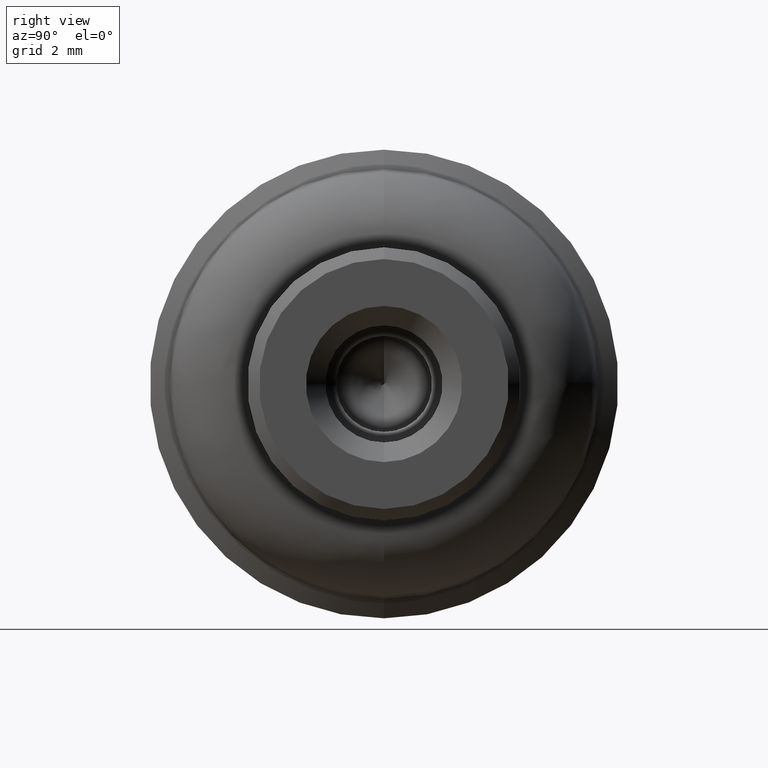
[diagram: clean part render]
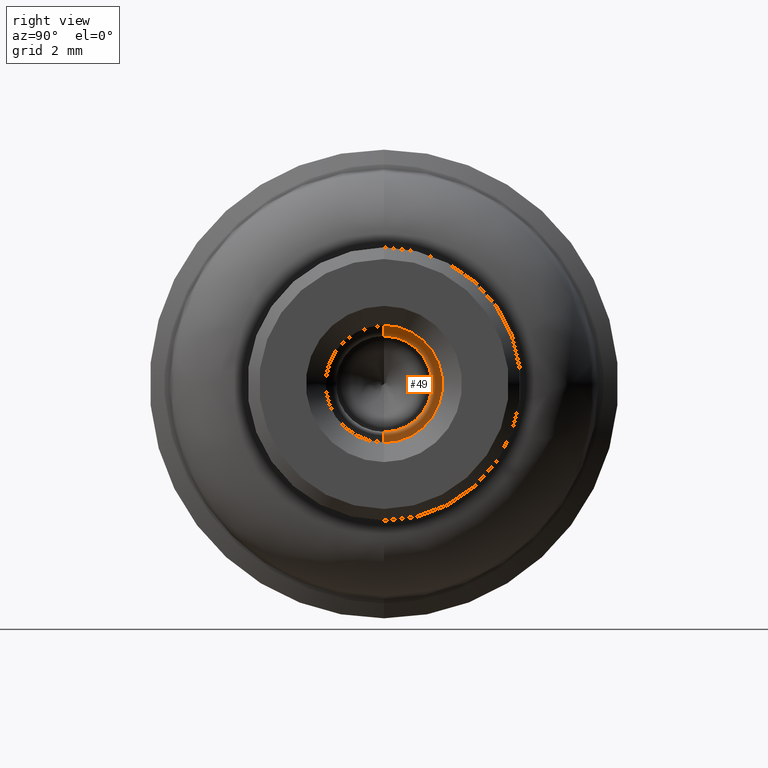
[diagram: same view with one face highlighted and labeled with its STEP entity id]
A machine part, right view. The second image highlights one B-rep face of the part: STEP entity #49.
In plain terms, the highlighted face is a freeform B-spline surface patch.
Its self-contained STEP definition (entity closure, byte-faithful):
#49=ADVANCED_FACE('',(#164),#163,.F.);
#163=( BOUNDED_SURFACE() B_SPLINE_SURFACE( 2,1,((#439,#440),(#441,#442),(#443,#444),(#445,#446),(#447,#448)), .UNSPECIFIED.,.F.,.F.,.F.) B_SPLINE_SURFACE_WITH_KNOTS((3,2,3),(2,2),(0.00000000000E+00,5.00000000000E-01,1.00000000000E+00),(0.00000000000E+00,1.00000000000E+00), .UNSPECIFIED. ) GEOMETRIC_REPRESENTATION_ITEM() RATIONAL_B_SPLINE_SURFACE(((1.00000000000E+00,1.00000000000E+00),(7.07106781187E-01,7.07106781187E-01),(1.00000000000E+00,1.00000000000E+00),(7.07106781187E-01,7.07106781187E-01),(1.00000000000E+00,1.00000000000E+00))) REPRESENTATION_ITEM('') SURFACE() );
#164=FACE_OUTER_BOUND('',#449,.T.);
#439=CARTESIAN_POINT('',(-5.50000000000E+00,0.00000000000E+00,0.00000000000E+00));
#440=CARTESIAN_POINT('',(-3.37867965644E+00,2.59786816871E-16,-2.12132034356E+00));
#441=CARTESIAN_POINT('',(-5.50000000000E+00,0.00000000000E+00,0.00000000000E+00));
#442=CARTESIAN_POINT('',(-3.37867965644E+00,2.12132034356E+00,-2.12132034356E+00));
#443=CARTESIAN_POINT('',(-5.50000000000E+00,0.00000000000E+00,0.00000000000E+00));
#444=CARTESIAN_POINT('',(-3.37867965644E+00,2.12132034356E+00,1.29893408435E-16));
#445=CARTESIAN_POINT('',(-5.50000000000E+00,0.00000000000E+00,0.00000000000E+00));
#446=CARTESIAN_POINT('',(-3.37867965644E+00,2.12132034356E+00,2.12132034356E+00));
#447=CARTESIAN_POINT('',(-5.50000000000E+00,0.00000000000E+00,0.00000000000E+00));
#448=CARTESIAN_POINT('',(-3.37867965644E+00,0.00000000000E+00,2.12132034356E+00));
#449=EDGE_LOOP('',(#714,#715,#716,#717));
#714=ORIENTED_EDGE('',*,*,#823,.F.);
#715=ORIENTED_EDGE('',*,*,#820,.F.);
#716=ORIENTED_EDGE('',*,*,#817,.T.);
#717=ORIENTED_EDGE('',*,*,#822,.T.);
#817=EDGE_CURVE('',#988,#981,#989,.T.);
#820=EDGE_CURVE('',#988,#1007,#1008,.T.);
#822=EDGE_CURVE('',#981,#1014,#1021,.T.);
#823=EDGE_CURVE('',#1007,#1014,#1027,.T.);
#981=VERTEX_POINT('',#1322);
#988=VERTEX_POINT('',#1325);
#989=CIRCLE('',#1329,1.22950000000E+00);
#1007=VERTEX_POINT('',#1336);
#1008=(BOUNDED_CURVE() B_SPLINE_CURVE(1,(#1337,#1338),.UNSPECIFIED.,.F.,.F.) B_SPLINE_CURVE_WITH_KNOTS((2,2),(5.79591860373E-01,7.07106779065E-01),.UNSPECIFIED.) CURVE() GEOMETRIC_REPRESENTATION_ITEM() RATIONAL_B_SPLINE_CURVE((1.00000000000E+00,1.00000000000E+00)) REPRESENTATION_ITEM('') );
#1014=VERTEX_POINT('',#1339);
#1021=(BOUNDED_CURVE() B_SPLINE_CURVE(1,(#1344,#1345),.UNSPECIFIED.,.F.,.F.) B_SPLINE_CURVE_WITH_KNOTS((2,2),(5.79590688547E-01,7.07106781187E-01),.UNSPECIFIED.) CURVE() GEOMETRIC_REPRESENTATION_ITEM() RATIONAL_B_SPLINE_CURVE((7.50000000000E-01,7.50000000000E-01)) REPRESENTATION_ITEM('') );
#1027=CIRCLE('',#1349,1.50000000000E+00);
#1322=CARTESIAN_POINT('',(-4.27050000000E+00,7.40148683083E-17,-1.22950000000E+00));
#1325=CARTESIAN_POINT('',(-4.27050000000E+00,0.00000000000E+00,1.22950000000E+00));
#1326=CARTESIAN_POINT('',(-4.27050000000E+00,0.00000000000E+00,0.00000000000E+00));
#1327=DIRECTION('',(-1.00000000000E+00,0.00000000000E+00,0.00000000000E+00));
#1328=DIRECTION('',(0.00000000000E+00,-1.22460635382E-16,1.00000000000E+00));
#1329=AXIS2_PLACEMENT_3D('',#1326,#1327,#1328);
#1336=CARTESIAN_POINT('',(-4.00000000000E+00,0.00000000000E+00,1.50000000000E+00));
#1337=CARTESIAN_POINT('',(-4.27049999563E+00,-3.01130703476E-16,1.22950000437E+00));
#1338=CARTESIAN_POINT('',(-4.00000000450E+00,-3.67381905045E-16,1.49999999550E+00));
#1339=CARTESIAN_POINT('',(-4.00000000000E+00,-7.40148683083E-17,-1.50000000000E+00));
#1344=CARTESIAN_POINT('',(-4.27050248145E+00,3.43186627884E-16,-1.22949751855E+00));
#1345=CARTESIAN_POINT('',(-4.00000000000E+00,4.18691322316E-16,-1.50000000000E+00));
#1346=CARTESIAN_POINT('',(-4.00000000000E+00,0.00000000000E+00,0.00000000000E+00));
#1347=DIRECTION('',(-1.00000000000E+00,0.00000000000E+00,0.00000000000E+00));
#1348=DIRECTION('',(0.00000000000E+00,-1.22460635382E-16,1.00000000000E+00));
#1349=AXIS2_PLACEMENT_3D('',#1346,#1347,#1348);